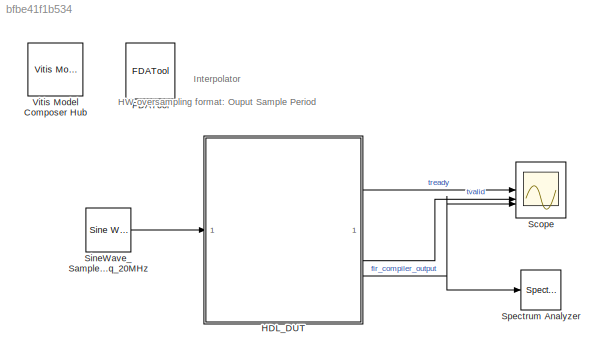
MODEL slx_bfbe41f1b534
KIND model
CONFIG AbsTol = auto
CONFIG EnableMultiTasking = on
CONFIG FixedStep = auto
CONFIG MaxStep = auto
CONFIG MinStep = auto
CONFIG RelTol = 1e-3
CONFIG SampleTimeConstraint = Unconstrained
CONFIG SolverName = ode45
CONFIG StartTime = 0.0
CONFIG StopTime = 8192/100e6
BLOCK [Reference] FDATool  REF=hdlUtilities/FDATool
  SourceBlock = hdlUtilities/FDATool
  SourceType = Xilinx FDATool Interface Block
  UserDataPersistent = on
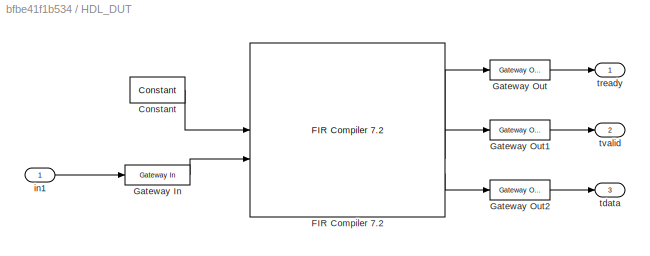
BLOCK [SubSystem] HDL_DUT
BLOCK [Reference] HDL_DUT/Constant  REF=hdlBasic/Constant
  SourceBlock = hdlBasic/Constant
  SourceType = Constant Block Block
BLOCK [Reference] HDL_DUT/FIR Compiler 7.2  REF=hdlDSPIP/FIR Compiler 7.2 
  SourceBlock = hdlDSPIP/FIR Compiler 7.2
  SourceType = FIR Compiler 7.2 Block
BLOCK [Reference] HDL_DUT/Gateway In  REF=hdlBasic/Gateway In
  SourceBlock = hdlBasic/Gateway In
  SourceType = Gateway In Block
BLOCK [Reference] HDL_DUT/Gateway Out  REF=hdlBasic/Gateway Out
  SourceBlock = hdlBasic/Gateway Out
  SourceType = Gateway Out Block
BLOCK [Reference] HDL_DUT/Gateway Out1  REF=hdlBasic/Gateway Out
  SourceBlock = hdlBasic/Gateway Out
  SourceType = Gateway Out Block
BLOCK [Reference] HDL_DUT/Gateway Out2  REF=hdlBasic/Gateway Out
  SourceBlock = hdlBasic/Gateway Out
  SourceType = Gateway Out Block
BLOCK [Inport] HDL_DUT/in1
BLOCK [Outport] HDL_DUT/tdata
  Port = 3
BLOCK [Outport] HDL_DUT/tready
BLOCK [Outport] HDL_DUT/tvalid
  Port = 2
BLOCK [Scope] Scope
  Floating = off
  NumInputPorts = 3
  ScopeSpecificationString = Simulink.scopes.TimeScopeBlockCfg('CurrentConfiguration', extmgr.ConfigurationSet(extmgr.Configuration('Core','General UI',true,'DisplayFullSourceName',false,'ShowMainToolbar',true),extmgr.Configuration('Sources','WiredSimulink',true,'DataLogging',false,'DataLoggingVariableName','ScopeData','DataLoggingLimitDataPoints',false,'DataLoggingMaxPoints','5000','DataLoggingDecimateData',false,'DataLoggin...<+3583ch>
BLOCK [Reference] SineWave_SampleFreq_20MHz  REF=dspsrcs4/Sine Wave
  LibrarySourceBlock = dsphdlsupportsrcs/Sine Wave
  SourceBlock = dspsrcs4/Sine Wave
  SourceType = Sine Wave
BLOCK [SpectrumAnalyzer] Spectrum Analyzer
  GraphicalSettings = {"GraphicalSettings":{"Style":{"BackgroundColor":[0.12941176470588237,0.12941176470588237,0.12941176470588237],"AxesColor":[0.070588235294117646,0.070588235294117646,0.070588235294117646],"LabelsColor":[0.85098039215686272,0.85098039215686272,0.85098039215686272],"PreserveColors":false,"Visible":true,"LineStyle":["-"],"LineColor":[1,0.90980392156862744,0.39215686274509803],"LineWidth":1.5,"Marker"...<+946ch>
  ScopeFrameLocation = window
  ShowLegend = on
  Span = 99999.99999999999
  StartFrequency = -49999.99999999999
  StopFrequency = 49999.99999999999
  WasSavedAsWebScope = on
  WindowPosition = [1.000000,1.000000,1280.000000,749.000000,]
  YLimits = [-60.54469329,16.73413719]
BLOCK [Reference] Vitis Model Composer Hub  REF=vmcUtilities/Vitis Model Composer Hub
  SourceBlock = vmcUtilities/Vitis Model Composer Hub
  SourceType = VMC Hub
  Tag = genX
  UserDataPersistent = on
ANNOTATION (root): Interpolator HW oversampling format: Ouput Sample Period
LINE HDL_DUT/Constant:1 -> HDL_DUT/FIR Compiler 7.2:1
LINE HDL_DUT/FIR Compiler 7.2:1 -> HDL_DUT/Gateway Out:1
LINE HDL_DUT/FIR Compiler 7.2:2 -> HDL_DUT/Gateway Out1:1
LINE HDL_DUT/FIR Compiler 7.2:3 -> HDL_DUT/Gateway Out2:1
LINE HDL_DUT/Gateway In:1 -> HDL_DUT/FIR Compiler 7.2:2
LINE HDL_DUT/Gateway Out1:1 -> HDL_DUT/tvalid:1
LINE HDL_DUT/Gateway Out2:1 -> HDL_DUT/tdata:1
LINE HDL_DUT/Gateway Out:1 -> HDL_DUT/tready:1
LINE HDL_DUT/in1:1 -> HDL_DUT/Gateway In:1
LINE HDL_DUT:1 -> Scope:1
LINE HDL_DUT:2 -> Scope:2
NET HDL_DUT:3 -> Scope:3, Spectrum Analyzer:1
LINE SineWave_SampleFreq_20MHz:1 -> HDL_DUT:1
note: NET lines group one-source signal fan-out (src -> all destinations, sorted); 1:1 wires keep LINE
